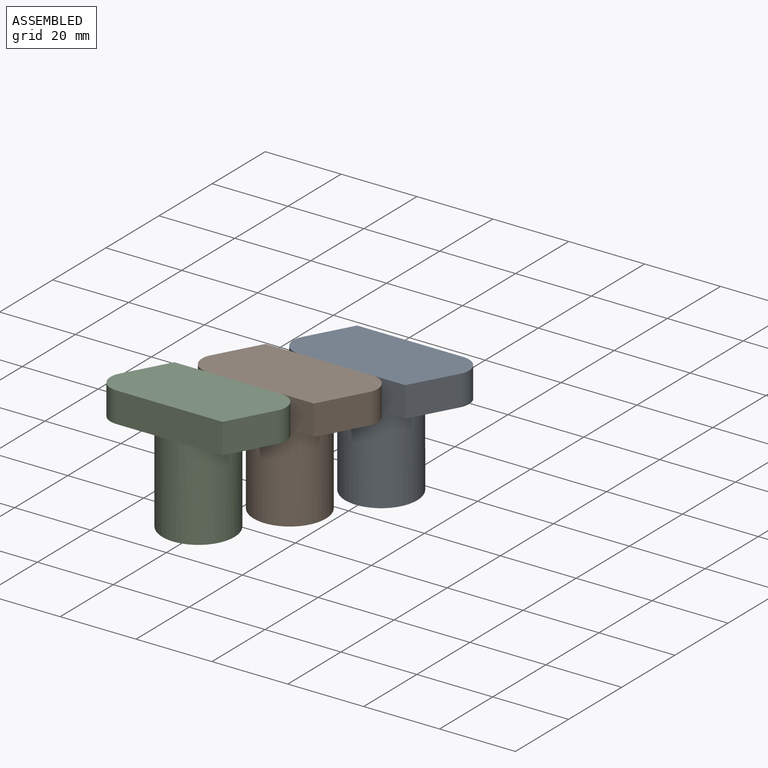
[diagram: assembled view]
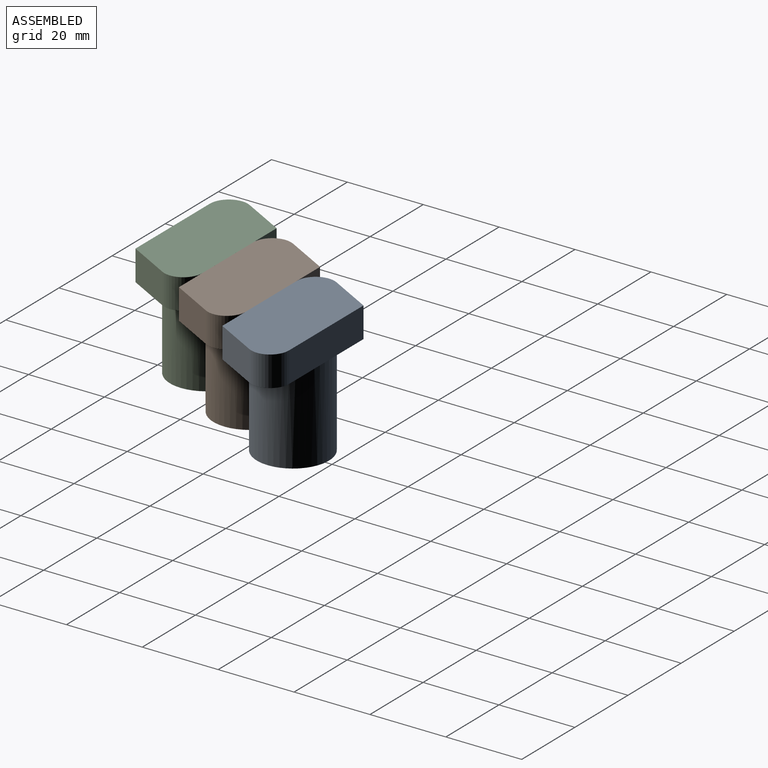
[diagram: assembled view, second angle]
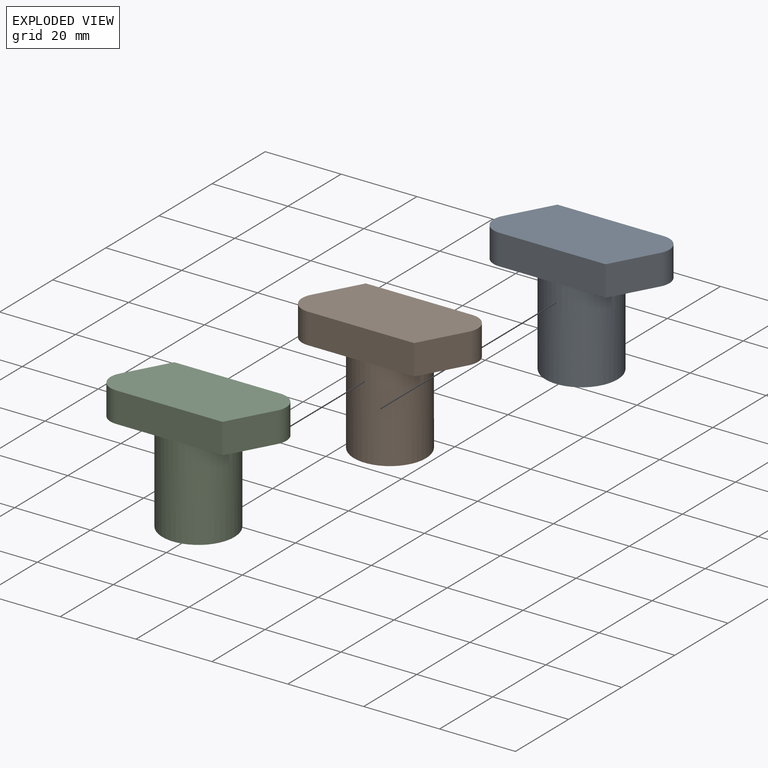
[diagram: exploded view]
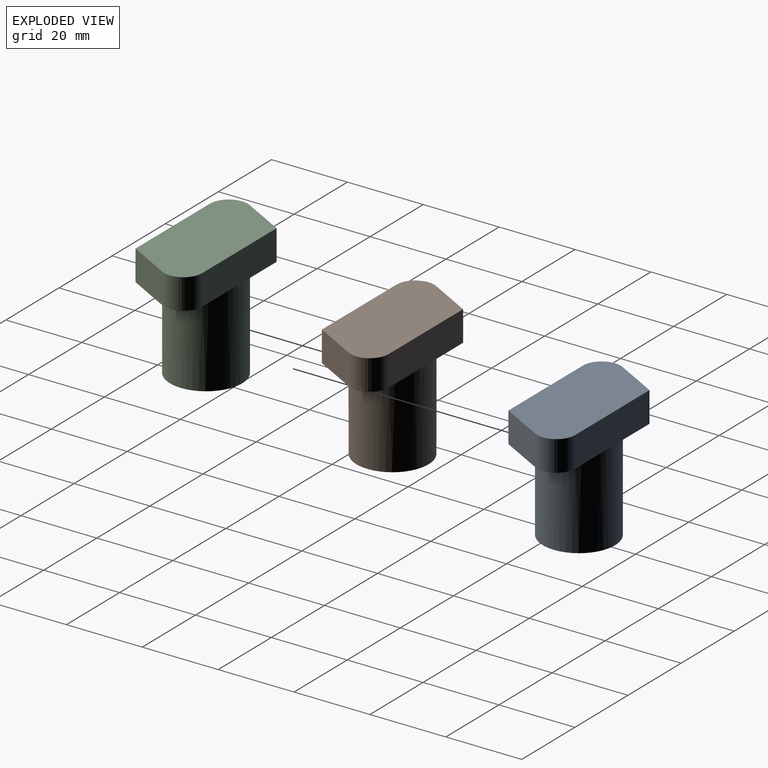
[diagram: exploded view, second angle]
ASSEMBLY  parts=3 mates=2
PART A: 11 faces, bbox 40x19x32 mm
  f0: plane 20x19mm, normal (0,0,-1), area 188.2mm2, adj f1,f2,f3,f6,f9
  f1: plane 11.59x8mm, normal (-0.88,0.48,0), area 105.8mm2, adj f0,f2,f6,f7
  f2: cylinder r=5mm len=8mm, axis (0,0,-1), area 83mm2, adj f0,f1,f3,f7
  f3: plane 28x8mm, normal (0,-1,0), area 224mm2, adj f0,f2,f4,f7,f8
  f4: plane 11.59x8mm, normal (0.88,-0.48,0), area 105.8mm2, adj f3,f5,f7,f8
  f5: cylinder r=5mm len=8mm, axis (0,0,-1), area 83mm2, adj f4,f6,f7,f8
  f6: plane 28x8mm, normal (0,1,0), area 224mm2, adj f0,f1,f5,f7,f8
  f7: plane 40x19mm, normal (0,0,1), area 660mm2, adj f1,f2,f3,f4,f5,f6
  f8: plane 20x19mm, normal (0,0,-1), area 188.2mm2, adj f3,f4,f5,f6,f9
  f9: cylinder r=9.5mm len=24mm, axis (0,0,1), area 1432.6mm2, adj f0,f8,f10
  f10: plane 19x19mm, normal (0,0,-1), area 283.5mm2, adj f9
PART B: same geometry as A
PART C: same geometry as A
PLACE A rot(axis=(0,0,1),180deg) t=(21.23,-29.46,8.84)mm
PLACE B rot(axis=(0,0,1),180deg) t=(10.44,-48.46,8.84)mm
PLACE C rot(axis=(0,0,1),180deg) t=(-0.35,-67.46,8.84)mm
MATE fastened B.f3 <-> A.f6  axis (0,1,0) through (15.84,-38.96,4.84)mm
MATE fastened C.f3 <-> B.f6  axis (0,1,0) through (5.05,-57.96,4.84)mm
